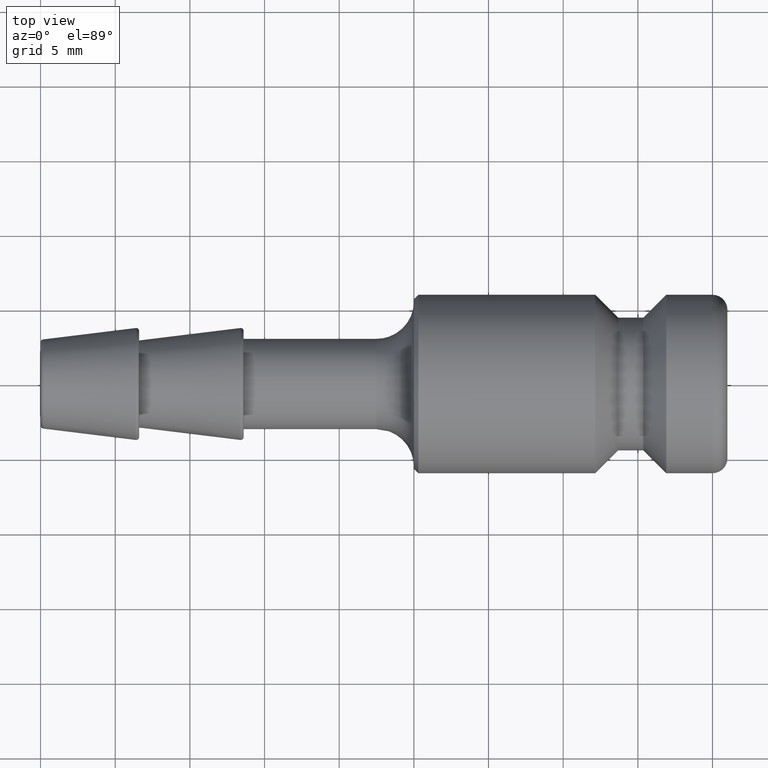
[diagram: clean part render]
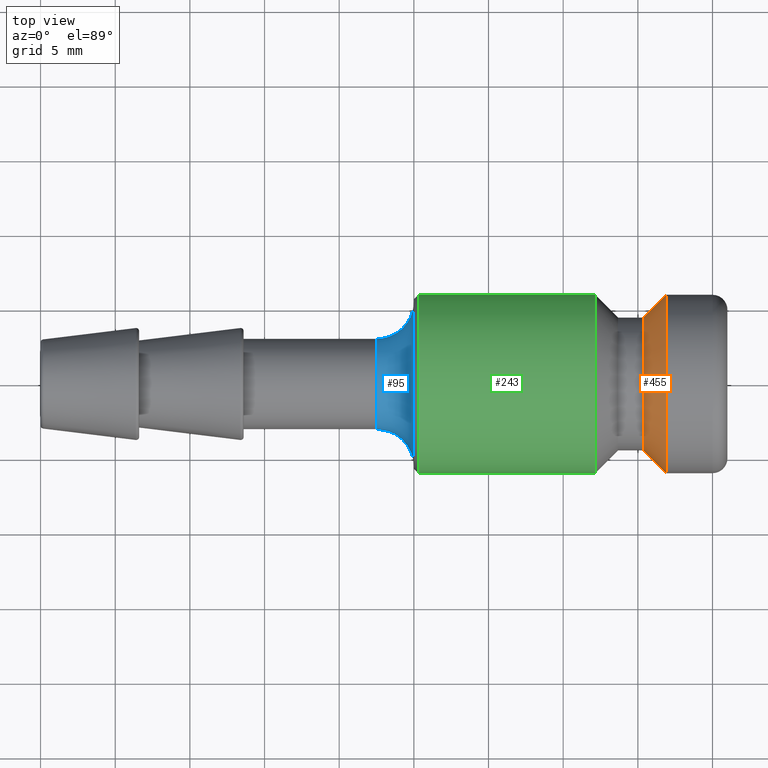
[diagram: same view with three faces highlighted in distinct colors, each labeled with its STEP entity id]
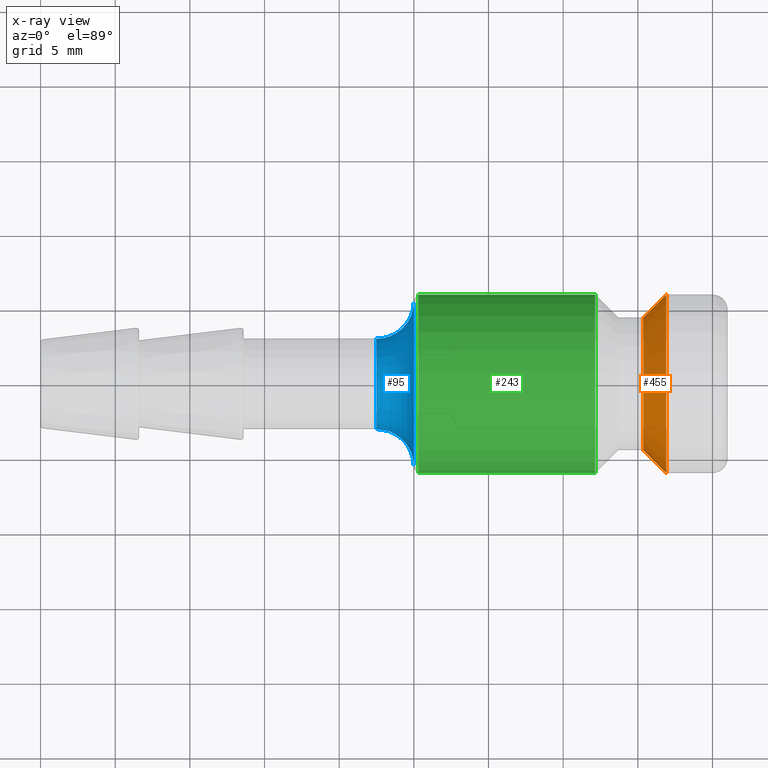
[diagram: x-ray of the same camera — body ghosted, the three highlighted faces saturated]
A machine part, top view with three faces highlighted in distinct colors.
The next image is the same camera in x-ray (body ghosted, the three faces saturated) — at least one of them is partly hidden behind the body in this view.
Their STEP definitions:

[orange] entity #455 — the highlighted conical surface has half-angle 45 deg.
#277=CARTESIAN_POINT('',(41.900000000000006,5.975000000000005,0.0));
#278=VERTEX_POINT('',#277);
#279=CARTESIAN_POINT('',(41.900000000000006,5.131270E-015,0.0));
#280=DIRECTION('',(1.0,0.0,0.0));
#281=DIRECTION('',(0.0,1.0,0.0));
#282=AXIS2_PLACEMENT_3D('',#279,#280,#281);
#283=CIRCLE('',#282,5.975000000000000);
#284=EDGE_CURVE('',#278,#278,#283,.T.);
#429=CARTESIAN_POINT('',(40.375000000000007,4.450000000000006,0.0));
#430=VERTEX_POINT('',#429);
#431=CARTESIAN_POINT('',(40.375000000000007,4.944511E-015,0.0));
#432=DIRECTION('',(1.0,0.0,0.0));
#433=DIRECTION('',(0.0,1.0,0.0));
#434=AXIS2_PLACEMENT_3D('',#431,#432,#433);
#435=CIRCLE('',#434,4.450000000000001);
#436=EDGE_CURVE('',#430,#430,#435,.T.);
#444=CARTESIAN_POINT('',(41.137500000000003,5.037891E-015,0.0));
#445=DIRECTION('',(1.0,1.224647E-016,0.0));
#446=DIRECTION('',(0.0,1.0,0.0));
#447=AXIS2_PLACEMENT_3D('',#444,#445,#446);
#448=CONICAL_SURFACE('',#447,5.212500000000000,45.000000000000007);
#449=ORIENTED_EDGE('',*,*,#284,.F.);
#450=EDGE_LOOP('',(#449));
#451=FACE_OUTER_BOUND('',#450,.T.);
#452=ORIENTED_EDGE('',*,*,#436,.T.);
#453=EDGE_LOOP('',(#452));
#454=FACE_BOUND('',#453,.T.);
#455=ADVANCED_FACE('',(#451,#454),#448,.T.);

[blue] entity #95 — the highlighted toroidal blend (fillet) surface has major radius 5.525 mm and minor (blend) radius 2.5 mm.
#68=CARTESIAN_POINT('',(22.500000000000000,2.755455E-015,0.0));
#69=DIRECTION('',(1.0,1.224647E-016,0.0));
#70=DIRECTION('',(0.0,0.0,-1.0));
#71=AXIS2_PLACEMENT_3D('',#68,#69,#70);
#72=TOROIDAL_SURFACE('',#71,5.525000000000000,2.500000000000000);
#73=CARTESIAN_POINT('',(22.500000000000000,3.025000000000003,0.0));
#74=VERTEX_POINT('',#73);
#75=CARTESIAN_POINT('',(22.500000000000000,2.755455E-015,0.0));
#76=DIRECTION('',(1.0,0.0,0.0));
#77=DIRECTION('',(0.0,-1.0,0.0));
#78=AXIS2_PLACEMENT_3D('',#75,#76,#77);
#79=CIRCLE('',#78,3.025000000000000);
#80=EDGE_CURVE('',#74,#74,#79,.T.);
#81=ORIENTED_EDGE('',*,*,#80,.T.);
#82=EDGE_LOOP('',(#81));
#83=FACE_OUTER_BOUND('',#82,.T.);
#84=CARTESIAN_POINT('',(25.0,5.525000000000003,-1.353235E-015));
#85=VERTEX_POINT('',#84);
#86=CARTESIAN_POINT('',(25.0,3.061617E-015,0.0));
#87=DIRECTION('',(-1.0,0.0,0.0));
#88=DIRECTION('',(0.0,-1.0,0.0));
#89=AXIS2_PLACEMENT_3D('',#86,#87,#88);
#90=CIRCLE('',#89,5.525000000000000);
#91=EDGE_CURVE('',#85,#85,#90,.T.);
#92=ORIENTED_EDGE('',*,*,#91,.T.);
#93=EDGE_LOOP('',(#92));
#94=FACE_BOUND('',#93,.T.);
#95=ADVANCED_FACE('',(#83,#94),#72,.F.);

[green] entity #243 — the highlighted cylindrical surface (bore or boss wall) has radius 5.975 mm, axis along (1, 0, 0).
#212=CARTESIAN_POINT('',(25.299999999999997,5.975000000000006,-7.317265E-016));
#213=VERTEX_POINT('',#212);
#214=CARTESIAN_POINT('',(25.299999999999997,3.098356E-015,0.0));
#215=DIRECTION('',(-1.0,0.0,0.0));
#216=DIRECTION('',(0.0,-1.0,0.0));
#217=AXIS2_PLACEMENT_3D('',#214,#215,#216);
#218=CIRCLE('',#217,5.975000000000002);
#219=EDGE_CURVE('',#213,#213,#218,.T.);
#224=CARTESIAN_POINT('',(31.075000000000003,3.805590E-015,0.0));
#225=DIRECTION('',(1.0,1.224647E-016,0.0));
#226=DIRECTION('',(0.0,1.0,0.0));
#227=AXIS2_PLACEMENT_3D('',#224,#225,#226);
#228=CYLINDRICAL_SURFACE('',#227,5.975000000000002);
#229=CARTESIAN_POINT('',(37.150000000000006,5.975000000000006,0.0));
#230=VERTEX_POINT('',#229);
#231=CARTESIAN_POINT('',(37.150000000000006,4.549563E-015,0.0));
#232=DIRECTION('',(1.0,0.0,0.0));
#233=DIRECTION('',(0.0,1.0,0.0));
#234=AXIS2_PLACEMENT_3D('',#231,#232,#233);
#235=CIRCLE('',#234,5.975000000000001);
#236=EDGE_CURVE('',#230,#230,#235,.T.);
#237=ORIENTED_EDGE('',*,*,#236,.F.);
#238=EDGE_LOOP('',(#237));
#239=FACE_OUTER_BOUND('',#238,.T.);
#240=ORIENTED_EDGE('',*,*,#219,.F.);
#241=EDGE_LOOP('',(#240));
#242=FACE_BOUND('',#241,.T.);
#243=ADVANCED_FACE('',(#239,#242),#228,.T.);